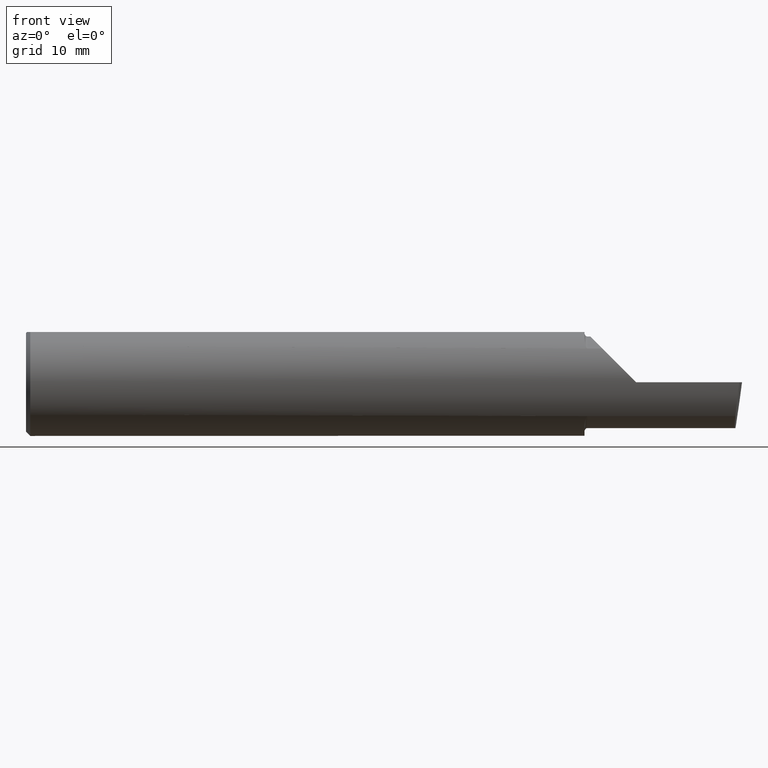
[diagram: clean part render]
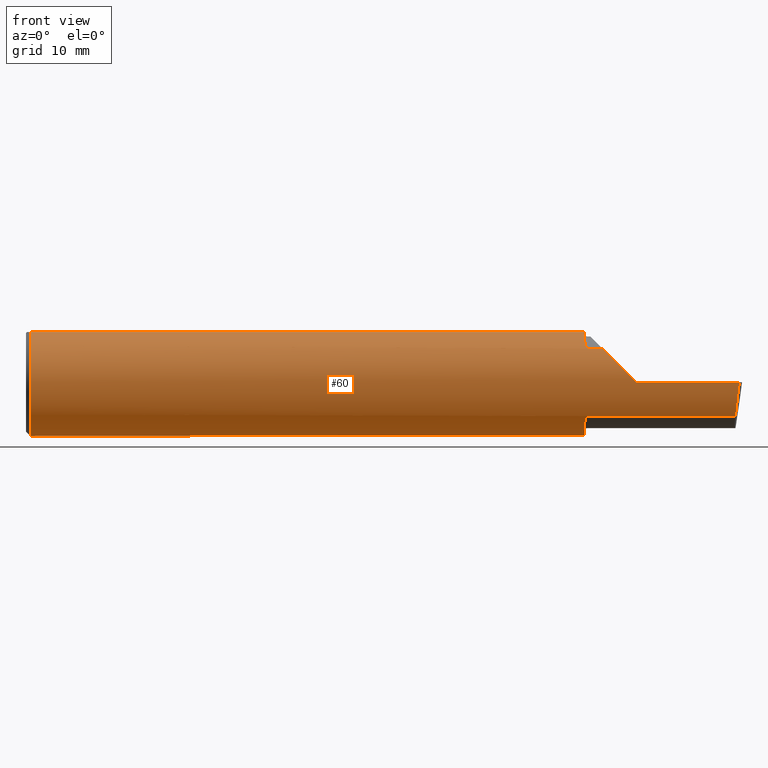
[diagram: same view with one face highlighted and labeled with its STEP entity id]
A machine part, front view. The second image highlights one B-rep face of the part: STEP entity #60.
In plain terms, the highlighted cylindrical surface (partial cylindrical patch) has radius 4.7587 mm, axis along (-1, -0, -0).
Its self-contained STEP definition (entity closure, byte-faithful):
#5 = CARTESIAN_POINT ( 'NONE',  ( 1.956674049009441196, -0.1431412424162808172, 0.1208797671938522250 ) ) ;
#7 = CARTESIAN_POINT ( 'NONE',  ( 2.480648201915109929, -0.1728409665178088084, -0.08432347972837160588 ) ) ;
#10 = CARTESIAN_POINT ( 'NONE',  ( 1.949999999999999956, -0.1013606951871662831, -0.1575627873933891920 ) ) ;
#18 = CARTESIAN_POINT ( 'NONE',  ( 1.959999999999999964, -0.1454917112299468074, -0.1180346748349050262 ) ) ;
#20 = CARTESIAN_POINT ( 'NONE',  ( 0.000000000000000000, -0.06597272163553657975, 0.1753499999999999781 ) ) ;
#23 = DIRECTION ( 'NONE',  ( 1.000000000000000000, -6.829619984160658046E-18, 0.000000000000000000 ) ) ;
#32 =( BOUNDED_CURVE ( )  B_SPLINE_CURVE ( 3, ( #594, #7, #56, #157 ),
 .UNSPECIFIED., .F., .T. ) 
 B_SPLINE_CURVE_WITH_KNOTS ( ( 4, 4 ),
 ( 0.6791649766273023525, 1.360746882514499045 ),
 .UNSPECIFIED. ) 
 CURVE ( )  GEOMETRIC_REPRESENTATION_ITEM ( )  RATIONAL_B_SPLINE_CURVE ( ( 1.000000000000000000, 0.9616603987079550553, 0.9616603987079550553, 1.000000000000000000 ) ) 
 REPRESENTATION_ITEM ( '' )  );
#35 = VERTEX_POINT ( 'NONE', #614 ) ;
#37 = CARTESIAN_POINT ( 'NONE',  ( 3.377502344341257155E-32, -0.1873499999999999610, 3.267291166268304703E-16 ) ) ;
#39 = ORIENTED_EDGE ( 'NONE', *, *, #193, .F. ) ;
#41 = CARTESIAN_POINT ( 'NONE',  ( 1.957580800664965981, -0.1442412736056273570, 0.1195608849622518677 ) ) ;
#44 = CARTESIAN_POINT ( 'NONE',  ( 1.957921033727478610, -0.1445976381173499636, 0.1191292621734211382 ) ) ;
#45 = ORIENTED_EDGE ( 'NONE', *, *, #377, .T. ) ;
#55 = CARTESIAN_POINT ( 'NONE',  ( 1.952152469637250753, -0.1294082664154924123, -0.1355718222394685091 ) ) ;
#56 = CARTESIAN_POINT ( 'NONE',  ( 2.485293537526806151, -0.1873500000000000998, -0.04340998088356409768 ) ) ;
#60 = ADVANCED_FACE ( 'NONE', ( #364 ), #557, .T. ) ;
#78 = AXIS2_PLACEMENT_3D ( 'NONE', #541, #105, #208 ) ;
#92 = CARTESIAN_POINT ( 'NONE',  ( 1.950493306168247898, -0.1180879943980265856, 0.1458023451353280819 ) ) ;
#96 = CARTESIAN_POINT ( 'NONE',  ( 2.045676520271627385, -0.1728409665178088639, 0.08432347972837128669 ) ) ;
#102 = CARTESIAN_POINT ( 'NONE',  ( 1.952845212421890464, -0.1330145888620364591, 0.1320338710448774322 ) ) ;
#104 = LINE ( 'NONE', #37, #360 ) ;
#105 = DIRECTION ( 'NONE',  ( -1.000000000000000000, -0.000000000000000000, -0.000000000000000000 ) ) ;
#107 = CARTESIAN_POINT ( 'NONE',  ( 1.959335809113330384, -0.1454917112299467796, -0.1180346748349050123 ) ) ;
#108 = CIRCLE ( 'NONE', #510, 0.1873499999999999888 ) ;
#110 = VERTEX_POINT ( 'NONE', #136 ) ;
#114 = VERTEX_POINT ( 'NONE', #173 ) ;
#131 = CARTESIAN_POINT ( 'NONE',  ( 2.477223734188808368, -0.1454917112299468074, -0.1180346748349050540 ) ) ;
#136 = CARTESIAN_POINT ( 'NONE',  ( 1.949999999999999956, -0.1013606951871662831, 0.1575627873933891920 ) ) ;
#137 = ORIENTED_EDGE ( 'NONE', *, *, #391, .F. ) ;
#140 = VERTEX_POINT ( 'NONE', #228 ) ;
#148 = VERTEX_POINT ( 'NONE', #263 ) ;
#153 = CARTESIAN_POINT ( 'NONE',  ( 1.950000000000000178, -0.1100056335683317482, 0.1520014681335478124 ) ) ;
#157 = CARTESIAN_POINT ( 'NONE',  ( 2.490625440078237940, -0.1873499999999999888, 6.926778495256704501E-17 ) ) ;
#159 = CARTESIAN_POINT ( 'NONE',  ( 1.957909242887170276, -0.1445870704379418892, -0.1191421054870956259 ) ) ;
#160 = VECTOR ( 'NONE', #257, 39.37007874015748143 ) ;
#173 = CARTESIAN_POINT ( 'NONE',  ( 2.011965325165093965, -0.1454917112299471127, 0.1180346748349047070 ) ) ;
#177 = DIRECTION ( 'NONE',  ( 0.000000000000000000, 1.000000000000000000, 0.000000000000000000 ) ) ;
#186 = ORIENTED_EDGE ( 'NONE', *, *, #469, .T. ) ;
#191 = VECTOR ( 'NONE', #260, 39.37007874015748143 ) ;
#193 = EDGE_CURVE ( 'NONE', #110, #140, #415, .T. ) ;
#203 = CARTESIAN_POINT ( 'NONE',  ( 2.075000000000000178, -0.1454917112299468074, -0.1180346748349050540 ) ) ;
#204 = CARTESIAN_POINT ( 'NONE',  ( 1.954992410154055005, -0.1399157128067682609, -0.1246181391956566603 ) ) ;
#208 = DIRECTION ( 'NONE',  ( 0.000000000000000000, 0.000000000000000000, 1.000000000000000000 ) ) ;
#209 = VERTEX_POINT ( 'NONE', #431 ) ;
#211 = CARTESIAN_POINT ( 'NONE',  ( 1.956664569472228443, -0.1431262185210689653, -0.1208975608635233512 ) ) ;
#212 = ORIENTED_EDGE ( 'NONE', *, *, #281, .T. ) ;
#213 = DIRECTION ( 'NONE',  ( 1.000000000000000000, -6.829619984160658046E-18, 0.000000000000000000 ) ) ;
#214 = DIRECTION ( 'NONE',  ( -1.000000000000000000, -0.000000000000000000, -0.000000000000000000 ) ) ;
#215 = EDGE_CURVE ( 'NONE', #483, #282, #104, .T. ) ;
#217 = DIRECTION ( 'NONE',  ( 0.000000000000000000, 0.000000000000000000, 1.000000000000000000 ) ) ;
#220 = DIRECTION ( 'NONE',  ( 1.000000000000000000, 0.000000000000000000, 0.000000000000000000 ) ) ;
#223 =( BOUNDED_CURVE ( )  B_SPLINE_CURVE ( 3, ( #333, #535, #96, #283 ),
 .UNSPECIFIED., .F., .T. ) 
 B_SPLINE_CURVE_WITH_KNOTS ( ( 4, 4 ),
 ( 4.712388980384689674, 5.393970886271882925 ),
 .UNSPECIFIED. ) 
 CURVE ( )  GEOMETRIC_REPRESENTATION_ITEM ( )  RATIONAL_B_SPLINE_CURVE ( ( 1.000000000000000000, 0.9616603987079553884, 0.9616603987079553884, 1.000000000000000000 ) ) 
 REPRESENTATION_ITEM ( '' )  );
#227 = CARTESIAN_POINT ( 'NONE',  ( 1.949999999999999956, 0.000000000000000000, 0.000000000000000000 ) ) ;
#228 = CARTESIAN_POINT ( 'NONE',  ( 1.959999999999999964, -0.1454917112299468629, 0.1180346748349049985 ) ) ;
#231 = DIRECTION ( 'NONE',  ( -1.000000000000000000, -0.000000000000000000, -0.000000000000000000 ) ) ;
#239 = AXIS2_PLACEMENT_3D ( 'NONE', #227, #463, #177 ) ;
#247 = VERTEX_POINT ( 'NONE', #434 ) ;
#249 = CARTESIAN_POINT ( 'NONE',  ( 1.949999999999999512, -0.1099295023601655485, -0.1520504436074704147 ) ) ;
#252 = DIRECTION ( 'NONE',  ( 0.000000000000000000, 0.000000000000000000, 1.000000000000000000 ) ) ;
#254 = CARTESIAN_POINT ( 'NONE',  ( 1.954404192622241521, -0.1382376748423449486, -0.1264781021717281684 ) ) ;
#255 = CARTESIAN_POINT ( 'NONE',  ( 1.950483388365423565, -0.1180160148311106827, -0.1458664675357412566 ) ) ;
#257 = DIRECTION ( 'NONE',  ( -1.000000000000000000, 6.829619984160658046E-18, -0.000000000000000000 ) ) ;
#260 = DIRECTION ( 'NONE',  ( -1.000000000000000000, -0.000000000000000000, -0.000000000000000000 ) ) ;
#262 = CARTESIAN_POINT ( 'NONE',  ( 2.075000000000000178, -0.1454917112299468074, 0.1180346748349050540 ) ) ;
#263 = CARTESIAN_POINT ( 'NONE',  ( 0.01499999999999999424, 0.06597272163553663527, 0.1753499999999999781 ) ) ;
#267 = LINE ( 'NONE', #262, #524 ) ;
#281 = EDGE_CURVE ( 'NONE', #282, #114, #223, .T. ) ;
#282 = VERTEX_POINT ( 'NONE', #626 ) ;
#283 = CARTESIAN_POINT ( 'NONE',  ( 2.011965325165093965, -0.1454917112299471127, 0.1180346748349047070 ) ) ;
#286 = CARTESIAN_POINT ( 'NONE',  ( 1.958780002058964076, -0.1452129146512415314, 0.1183784924451695281 ) ) ;
#296 = DIRECTION ( 'NONE',  ( -1.000000000000000000, -0.000000000000000000, -0.000000000000000000 ) ) ;
#300 = CARTESIAN_POINT ( 'NONE',  ( 1.956208682939483356, -0.1423361566194925321, -0.1218275716760981731 ) ) ;
#322 = VERTEX_POINT ( 'NONE', #496 ) ;
#325 = ORIENTED_EDGE ( 'NONE', *, *, #500, .F. ) ;
#333 = CARTESIAN_POINT ( 'NONE',  ( 2.129999999999999893, -0.1873499999999999888, 1.065442715258197396E-16 ) ) ;
#336 = EDGE_CURVE ( 'NONE', #502, #35, #357, .T. ) ;
#340 = ORIENTED_EDGE ( 'NONE', *, *, #356, .F. ) ;
#345 = CARTESIAN_POINT ( 'NONE',  ( 0.01499999999999999424, 0.000000000000000000, -0.1873499999999999888 ) ) ;
#349 = CIRCLE ( 'NONE', #239, 0.1873499999999999888 ) ;
#351 = CARTESIAN_POINT ( 'NONE',  ( 0.01499999999999999424, 0.000000000000000000, 0.000000000000000000 ) ) ;
#354 = B_SPLINE_CURVE_WITH_KNOTS ( 'NONE', 3,
 ( #18, #107, #449, #159, #487, #211, #300, #204, #254, #586, #55, #255, #249, #10 ),
 .UNSPECIFIED., .F., .F.,
 ( 4, 2, 2, 2, 2, 2, 4 ),
 ( 1.967643395654151782E-07, 5.001319782656704827E-05, 9.982963131356867846E-05, 0.0001994624982875719253, 0.0003987282322355774973, 0.0007972597001315919482, 0.001594322635923620850 ),
 .UNSPECIFIED. ) ;
#356 = EDGE_CURVE ( 'NONE', #35, #209, #354, .T. ) ;
#357 = LINE ( 'NONE', #203, #160 ) ;
#360 = VECTOR ( 'NONE', #231, 39.37007874015748143 ) ;
#364 = FACE_OUTER_BOUND ( 'NONE', #392, .T. ) ;
#377 = EDGE_CURVE ( 'NONE', #502, #483, #32, .T. ) ;
#380 = ORIENTED_EDGE ( 'NONE', *, *, #405, .F. ) ;
#385 = ORIENTED_EDGE ( 'NONE', *, *, #489, .F. ) ;
#389 = VERTEX_POINT ( 'NONE', #345 ) ;
#391 = EDGE_CURVE ( 'NONE', #389, #247, #600, .T. ) ;
#392 = EDGE_LOOP ( 'NONE', ( #533, #45, #578, #212, #325, #39, #385, #186, #137, #380, #576, #438, #340 ) ) ;
#405 = EDGE_CURVE ( 'NONE', #148, #389, #108, .T. ) ;
#410 = CARTESIAN_POINT ( 'NONE',  ( 0.000000000000000000, 0.06597272163553663527, 0.1753499999999999781 ) ) ;
#415 = B_SPLINE_CURVE_WITH_KNOTS ( 'NONE', 3,
 ( #473, #153, #92, #573, #102, #440, #477, #479, #5, #41, #44, #286, #569, #583 ),
 .UNSPECIFIED., .F., .F.,
 ( 4, 2, 2, 2, 2, 2, 4 ),
 ( 0.0006605532644857166694, 0.001446564801351206322, 0.001839570569783951365, 0.002036073454000323669, 0.002134324896108512858, 0.002183450617162612656, 0.002232576338216711587 ),
 .UNSPECIFIED. ) ;
#431 = CARTESIAN_POINT ( 'NONE',  ( 1.949999999999999956, -0.1013606951871662831, -0.1575627873933891920 ) ) ;
#434 = CARTESIAN_POINT ( 'NONE',  ( 0.01499999999999997863, -0.06597272163553657975, 0.1753499999999999781 ) ) ;
#438 = ORIENTED_EDGE ( 'NONE', *, *, #461, .F. ) ;
#440 = CARTESIAN_POINT ( 'NONE',  ( 1.954402240695038762, -0.1382337250035448051, 0.1264828452200231212 ) ) ;
#449 = CARTESIAN_POINT ( 'NONE',  ( 1.958770022656896481, -0.1452078353828892276, -0.1183847404910799567 ) ) ;
#457 = EDGE_CURVE ( 'NONE', #148, #567, #501, .T. ) ;
#459 = CARTESIAN_POINT ( 'NONE',  ( 1.949999999999999956, 0.06597272163553663527, 0.1753499999999999781 ) ) ;
#461 = EDGE_CURVE ( 'NONE', #209, #567, #492, .T. ) ;
#463 = DIRECTION ( 'NONE',  ( 1.000000000000000000, -6.829619984160658046E-18, 0.000000000000000000 ) ) ;
#469 = EDGE_CURVE ( 'NONE', #322, #247, #606, .T. ) ;
#473 = CARTESIAN_POINT ( 'NONE',  ( 1.949999999999999956, -0.1013606951871662831, 0.1575627873933891920 ) ) ;
#474 = VECTOR ( 'NONE', #220, 39.37007874015748143 ) ;
#477 = CARTESIAN_POINT ( 'NONE',  ( 1.954997648858496362, -0.1399294360413336213, 0.1246027428089592215 ) ) ;
#479 = CARTESIAN_POINT ( 'NONE',  ( 1.956216587669450835, -0.1423502170013170864, 0.1218111458006543441 ) ) ;
#483 = VERTEX_POINT ( 'NONE', #515 ) ;
#487 = CARTESIAN_POINT ( 'NONE',  ( 1.957567572594821392, -0.1442269357022588627, -0.1195781817710028921 ) ) ;
#489 = EDGE_CURVE ( 'NONE', #322, #110, #349, .T. ) ;
#492 = CIRCLE ( 'NONE', #625, 0.1873499999999999888 ) ;
#496 = CARTESIAN_POINT ( 'NONE',  ( 1.949999999999999956, -0.06597272163553659363, 0.1753499999999999781 ) ) ;
#500 = EDGE_CURVE ( 'NONE', #140, #114, #267, .T. ) ;
#501 = LINE ( 'NONE', #410, #474 ) ;
#502 = VERTEX_POINT ( 'NONE', #131 ) ;
#508 = DIRECTION ( 'NONE',  ( 0.000000000000000000, 1.000000000000000000, 0.000000000000000000 ) ) ;
#510 = AXIS2_PLACEMENT_3D ( 'NONE', #351, #296, #252 ) ;
#515 = CARTESIAN_POINT ( 'NONE',  ( 2.490625440078237940, -0.1873499999999999888, 6.926778495256704501E-17 ) ) ;
#516 = CARTESIAN_POINT ( 'NONE',  ( 0.000000000000000000, 0.000000000000000000, 0.000000000000000000 ) ) ;
#524 = VECTOR ( 'NONE', #213, 39.37007874015748143 ) ;
#533 = ORIENTED_EDGE ( 'NONE', *, *, #336, .F. ) ;
#535 = CARTESIAN_POINT ( 'NONE',  ( 2.086590019116435268, -0.1873499999999999610, 0.04340998088356396584 ) ) ;
#541 = CARTESIAN_POINT ( 'NONE',  ( 0.01499999999999999424, 0.000000000000000000, 0.000000000000000000 ) ) ;
#556 = CARTESIAN_POINT ( 'NONE',  ( 1.949999999999999956, 0.000000000000000000, 0.000000000000000000 ) ) ;
#557 = CYLINDRICAL_SURFACE ( 'NONE', #584, 0.1873499999999999888 ) ;
#567 = VERTEX_POINT ( 'NONE', #459 ) ;
#569 = CARTESIAN_POINT ( 'NONE',  ( 1.959343186359710387, -0.1454917112302227256, 0.1180346748345668245 ) ) ;
#573 = CARTESIAN_POINT ( 'NONE',  ( 1.952149571221040825, -0.1293863363941686051, 0.1355911774285940841 ) ) ;
#576 = ORIENTED_EDGE ( 'NONE', *, *, #457, .T. ) ;
#578 = ORIENTED_EDGE ( 'NONE', *, *, #215, .T. ) ;
#583 = CARTESIAN_POINT ( 'NONE',  ( 1.959999999999999964, -0.1454917112299468629, 0.1180346748349049985 ) ) ;
#584 = AXIS2_PLACEMENT_3D ( 'NONE', #516, #214, #217 ) ;
#586 = CARTESIAN_POINT ( 'NONE',  ( 1.952858161161656891, -0.1330631366558199247, -0.1319833113027347182 ) ) ;
#594 = CARTESIAN_POINT ( 'NONE',  ( 2.477223734188808368, -0.1454917112299468074, -0.1180346748349050540 ) ) ;
#600 = CIRCLE ( 'NONE', #78, 0.1873499999999999888 ) ;
#606 = LINE ( 'NONE', #20, #191 ) ;
#614 = CARTESIAN_POINT ( 'NONE',  ( 1.959999999999999964, -0.1454917112299468074, -0.1180346748349050262 ) ) ;
#625 = AXIS2_PLACEMENT_3D ( 'NONE', #556, #23, #508 ) ;
#626 = CARTESIAN_POINT ( 'NONE',  ( 2.129999999999999893, -0.1873499999999999888, 1.065442715258197396E-16 ) ) ;